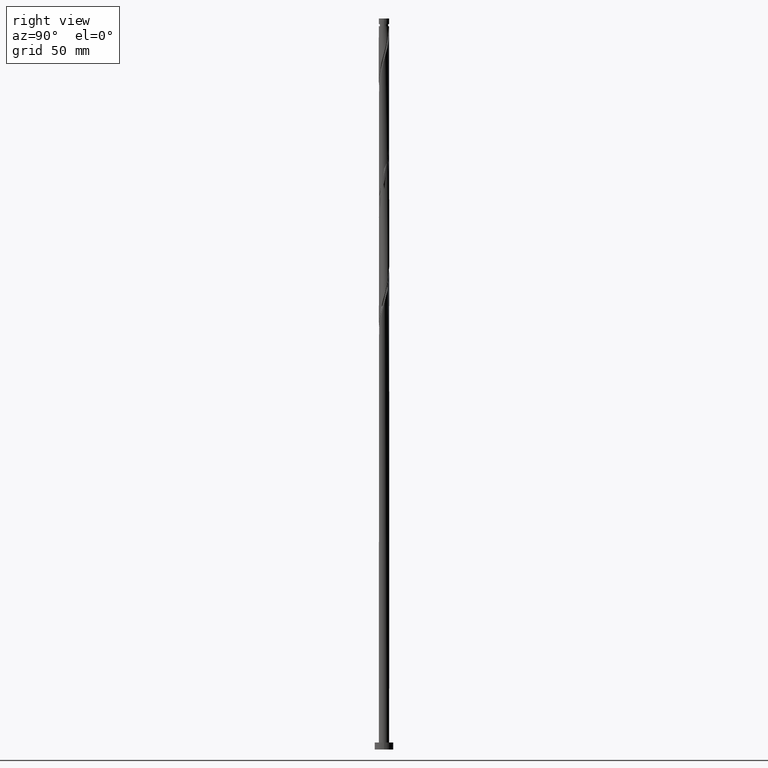
[diagram: clean part render]
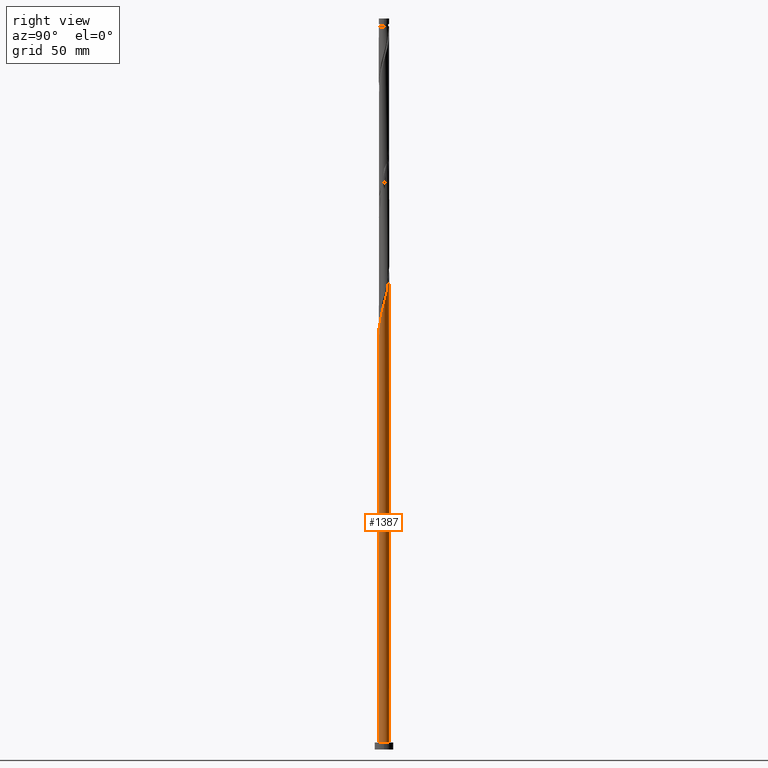
[diagram: same view with one face highlighted and labeled with its STEP entity id]
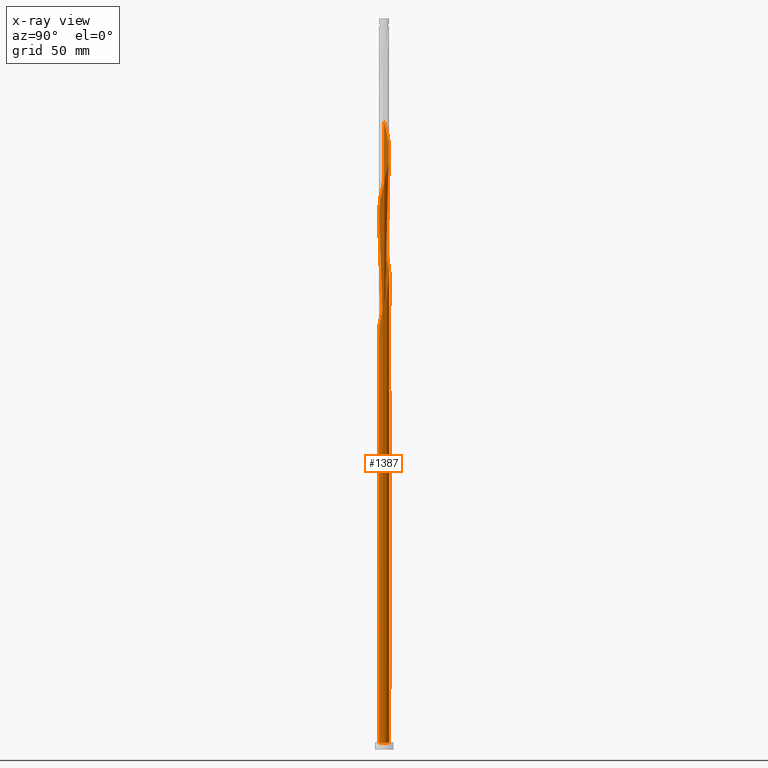
[diagram: x-ray of the same camera — body ghosted, the highlighted face saturated]
A machine part, right view. The second image highlights one B-rep face of the part: STEP entity #1387.
The next image is the same camera in x-ray: the body ghosted, the highlighted face saturated — about 0% of this face is hidden behind the body in this view.
In plain terms, the highlighted cylindrical surface (bore or boss wall) has radius 2.25 mm, axis along (-0, -0, -1).
Its self-contained STEP definition (entity closure, byte-faithful):
#2 = CARTESIAN_POINT ( 'NONE',  ( 2.205000000000002736, 0.4477443466979809106, 193.5679019602913797 ) ) ;
#25 = CARTESIAN_POINT ( 'NONE',  ( -1.639118940635362121, 1.562068662012232378, 162.6304019602913797 ) ) ;
#34 = CARTESIAN_POINT ( 'NONE',  ( -2.250000000000003109, -1.436605701446846111E-15, 165.6433848823853339 ) ) ;
#36 = CARTESIAN_POINT ( 'NONE',  ( 1.945615784186171648, 1.158166061804576152, 248.8804019602914366 ) ) ;
#38 = EDGE_CURVE ( 'NONE', #372, #1735, #339, .T. ) ;
#45 = CARTESIAN_POINT ( 'NONE',  ( -2.250000000000002665, -1.436605701446846111E-15, 165.6433848823853623 ) ) ;
#47 = CARTESIAN_POINT ( 'NONE',  ( 0.4477443466979810216, -2.205000000000002736, 232.9429019602913797 ) ) ;
#52 = CARTESIAN_POINT ( 'NONE',  ( -1.887642616875908841, 1.250429829036466378, 160.7554019602914082 ) ) ;
#55 = CARTESIAN_POINT ( 'NONE',  ( -0.1993005142182356915, 2.255448671866119525, 258.2554019602914082 ) ) ;
#66 = CARTESIAN_POINT ( 'NONE',  ( 1.444774384835915360, 1.724855639444070832, 251.6929019602914082 ) ) ;
#72 = CARTESIAN_POINT ( 'NONE',  ( -2.249348536561817546, 0.05414019825619637710, 165.4429019602914082 ) ) ;
#75 = CARTESIAN_POINT ( 'NONE',  ( 2.050083556160028575, 0.9271771204911509745, 247.9429019602913513 ) ) ;
#90 = CARTESIAN_POINT ( 'NONE',  ( -1.724855639444071498, 1.444774384835915360, 264.8179019602913513 ) ) ;
#108 = CARTESIAN_POINT ( 'NONE',  ( -2.003102452848100068, 1.024734386752946813, 266.6929019602914650 ) ) ;
#110 = DIRECTION ( 'NONE',  ( 0.000000000000000000, -0.000000000000000000, -1.000000000000000000 ) ) ;
#114 = ORIENTED_EDGE ( 'NONE', *, *, #1198, .F. ) ;
#119 = LINE ( 'NONE', #668, #178 ) ;
#146 = CARTESIAN_POINT ( 'NONE',  ( 1.360117361908405043, -1.792367362410768328, 184.1929019602913513 ) ) ;
#157 = CARTESIAN_POINT ( 'NONE',  ( -2.050083556160028575, -0.9271771204911511965, 169.1929019602913797 ) ) ;
#169 = CARTESIAN_POINT ( 'NONE',  ( 1.945615784186171648, 1.158166061804576152, 196.3804019602914366 ) ) ;
#176 = CARTESIAN_POINT ( 'NONE',  ( -1.158166061804576374, 1.945615784186171426, 157.0054019602914082 ) ) ;
#178 = VECTOR ( 'NONE', #555, 1000.000000000000000 ) ;
#179 = CARTESIAN_POINT ( 'NONE',  ( -2.003102452848100068, 1.024734386752946813, 214.1929019602913513 ) ) ;
#189 = CARTESIAN_POINT ( 'NONE',  ( -2.118562288820291517, 0.7990389444694281362, 215.1304019602914650 ) ) ;
#190 = ORIENTED_EDGE ( 'NONE', *, *, #1670, .F. ) ;
#197 = CARTESIAN_POINT ( 'NONE',  ( -2.180905345038905541, 0.5533099276000283950, 216.0679019602913797 ) ) ;
#205 = CARTESIAN_POINT ( 'NONE',  ( 2.180905345038905097, -0.5533099276000287281, 242.3179019602914366 ) ) ;
#206 = AXIS2_PLACEMENT_3D ( 'NONE', #249, #1205, #798 ) ;
#217 = CARTESIAN_POINT ( 'NONE',  ( -0.6961881791777265738, 2.154551328133886834, 207.6304019602914082 ) ) ;
#233 = CARTESIAN_POINT ( 'NONE',  ( -1.360117361908405043, 1.792367362410768328, 262.9429019602913513 ) ) ;
#234 = EDGE_CURVE ( 'NONE', #1105, #1019, #1575, .T. ) ;
#249 = CARTESIAN_POINT ( 'NONE',  ( 0.000000000000000000, 0.000000000000000000, 3.000000000000000000 ) ) ;
#257 = CARTESIAN_POINT ( 'NONE',  ( -2.250000000000002220, 0.02707401862438028189, 270.5430221941601872 ) ) ;
#262 = CIRCLE ( 'NONE', #206, 2.250000000000000000 ) ;
#278 = CARTESIAN_POINT ( 'NONE',  ( -0.4477443466979808551, 2.205000000000002736, 154.1929019602914366 ) ) ;
#280 = CARTESIAN_POINT ( 'NONE',  ( 2.118562288820291517, -0.7990389444694282473, 188.8804019602914934 ) ) ;
#287 = CARTESIAN_POINT ( 'NONE',  ( -2.249999999999999112, 1.992590765123691183E-15, 168.9924190381975109 ) ) ;
#299 = CARTESIAN_POINT ( 'NONE',  ( -1.444774384835912473, 1.724855639444069055, 161.6929019602914366 ) ) ;
#319 =( BOUNDED_CURVE ( )  B_SPLINE_CURVE ( 2, ( #1315, #736, #892, #176, #865, #1695, #1016, #52, #1417, #1443, #444, #1298, #72, #608, #34 ),
 .UNSPECIFIED., .F., .T. ) 
 B_SPLINE_CURVE_WITH_KNOTS ( ( 3, 2, 2, 2, 2, 2, 2, 3 ),
 ( 0.000000000000000000, 0.008928571428571396851, 0.01785714285714290472, 0.02678571428571430157, 0.03571428571428569843, 0.04464285714285709528, 0.05357142857142860315, 0.05453034012992205581 ),
 .UNSPECIFIED. ) 
 CURVE ( )  GEOMETRIC_REPRESENTATION_ITEM ( )  RATIONAL_B_SPLINE_CURVE ( ( 0.9090909090909629064, 0.9033747362666375569, 0.9090909090909629064, 0.9033747362666375569, 0.9090909090909629064, 0.9033747362666375569, 0.9090909090909629064, 0.9033747362666375569, 0.9090909090909629064, 0.9033747362666375569, 0.9090909090909629064, 0.9033747362666375569, 0.9090909090909629064, 0.9084770030215046921, 0.9079949616362330556 ) ) 
 REPRESENTATION_ITEM ( '' )  );
#323 = CARTESIAN_POINT ( 'NONE',  ( 0.7990389444694285803, 2.118562288820291517, 202.0054019602914366 ) ) ;
#324 = ORIENTED_EDGE ( 'NONE', *, *, #234, .F. ) ;
#332 = CARTESIAN_POINT ( 'NONE',  ( 0.5533099276000287281, 2.180905345038905097, 255.4429019602913513 ) ) ;
#339 = CIRCLE ( 'NONE', #1706, 2.250000000000000000 ) ;
#342 = CARTESIAN_POINT ( 'NONE',  ( 2.205000000000002736, 0.4477443466979809106, 246.0679019602914082 ) ) ;
#343 = ORIENTED_EDGE ( 'NONE', *, *, #639, .T. ) ;
#351 = CARTESIAN_POINT ( 'NONE',  ( -1.158166061804576374, 1.945615784186171426, 209.5054019602914934 ) ) ;
#352 = EDGE_LOOP ( 'NONE', ( #190, #324, #1136, #1331, #343, #538, #114, #1554, #1319 ) ) ;
#361 = CARTESIAN_POINT ( 'NONE',  ( 1.158166061804576152, -1.945615784186171426, 235.7554019602914082 ) ) ;
#372 = VERTEX_POINT ( 'NONE', #1472 ) ;
#407 = CARTESIAN_POINT ( 'NONE',  ( -0.7990389444694263599, 2.118562288820289297, 158.8804019602914650 ) ) ;
#417 = CARTESIAN_POINT ( 'NONE',  ( 0.4477443466979810216, -2.205000000000002736, 180.4429019602914082 ) ) ;
#436 = CARTESIAN_POINT ( 'NONE',  ( 2.243248401257517788, -0.3075809107306291534, 190.7554019602914366 ) ) ;
#444 = CARTESIAN_POINT ( 'NONE',  ( -2.180905345038905541, 0.5533099276000283950, 163.5679019602913229 ) ) ;
#446 = CARTESIAN_POINT ( 'NONE',  ( 1.724855639444070832, -1.444774384835915360, 186.0679019602914082 ) ) ;
#454 = CARTESIAN_POINT ( 'NONE',  ( -0.7990389444694282473, -2.118562288820291517, 228.2554019602914082 ) ) ;
#461 = DIRECTION ( 'NONE',  ( -0.000000000000000000, -0.000000000000000000, -1.000000000000000000 ) ) ;
#464 = CARTESIAN_POINT ( 'NONE',  ( -0.1993005142182356915, 2.255448671866119525, 205.7554019602914650 ) ) ;
#473 = CARTESIAN_POINT ( 'NONE',  ( -0.3075809107306290424, -2.243248401257518232, 230.1304019602914366 ) ) ;
#482 = CARTESIAN_POINT ( 'NONE',  ( -0.4477443466979807996, 2.205000000000002736, 206.6929019602914366 ) ) ;
#485 = VERTEX_POINT ( 'NONE', #1757 ) ;
#490 = CARTESIAN_POINT ( 'NONE',  ( -1.724855639444071498, 1.444774384835915360, 212.3179019602914082 ) ) ;
#516 = CARTESIAN_POINT ( 'NONE',  ( 2.250000000000000000, 0.000000000000000000, 3.000000000000000000 ) ) ;
#525 = CARTESIAN_POINT ( 'NONE',  ( 0.000000000000000000, 0.000000000000000000, 154.1929019602914366 ) ) ;
#538 = ORIENTED_EDGE ( 'NONE', *, *, #775, .F. ) ;
#541 = CARTESIAN_POINT ( 'NONE',  ( -2.205000000000002736, -0.4477443466979811881, 167.3179019602914082 ) ) ;
#551 = DIRECTION ( 'NONE',  ( -0.000000000000000000, -0.000000000000000000, -1.000000000000000000 ) ) ;
#555 = DIRECTION ( 'NONE',  ( -0.000000000000000000, -0.000000000000000000, -1.000000000000000000 ) ) ;
#560 = CARTESIAN_POINT ( 'NONE',  ( 0.4477443466979814657, 2.204999999999998739, 154.1929019602914366 ) ) ;
#562 = CARTESIAN_POINT ( 'NONE',  ( 2.154551328133886834, 0.6961881791777263517, 194.5054019602914366 ) ) ;
#573 = CARTESIAN_POINT ( 'NONE',  ( 1.562068662012234377, -1.639118940635365451, 185.1304019602913797 ) ) ;
#582 = CARTESIAN_POINT ( 'NONE',  ( -2.250000000000000000, 0.000000000000000000, 315.0000000000000000 ) ) ;
#592 = CARTESIAN_POINT ( 'NONE',  ( 0.5533099276000287281, 2.180905345038905097, 202.9429019602913229 ) ) ;
#600 = CARTESIAN_POINT ( 'NONE',  ( 0.7990389444694285803, 2.118562288820291517, 254.5054019602914650 ) ) ;
#608 = CARTESIAN_POINT ( 'NONE',  ( -2.250000000000002220, 0.02707401862437792961, 165.5430221941603008 ) ) ;
#612 = CARTESIAN_POINT ( 'NONE',  ( -1.360117361908405043, 1.792367362410768328, 210.4429019602913797 ) ) ;
#624 = CARTESIAN_POINT ( 'NONE',  ( -1.444774384835915360, -1.724855639444071498, 225.4429019602913797 ) ) ;
#632 = CARTESIAN_POINT ( 'NONE',  ( -1.887642616875908841, 1.250429829036466378, 213.2554019602914082 ) ) ;
#639 = EDGE_CURVE ( 'NONE', #1735, #372, #262, .T. ) ;
#641 = CARTESIAN_POINT ( 'NONE',  ( -2.180905345038905541, 0.5533099276000283950, 268.5679019602914650 ) ) ;
#648 = CARTESIAN_POINT ( 'NONE',  ( -0.9271771204911513076, 2.050083556160028575, 261.0679019602914082 ) ) ;
#655 = CARTESIAN_POINT ( 'NONE',  ( -0.4477443466979807996, 2.205000000000002736, 259.1929019602913513 ) ) ;
#665 = CARTESIAN_POINT ( 'NONE',  ( -1.158166061804576374, 1.945615784186171426, 262.0054019602914082 ) ) ;
#668 = CARTESIAN_POINT ( 'NONE',  ( -2.250000000000000000, 0.000000000000000000, 315.0000000000000000 ) ) ;
#682 = CARTESIAN_POINT ( 'NONE',  ( 1.158166061804576152, -1.945615784186171426, 183.2554019602914366 ) ) ;
#689 = CARTESIAN_POINT ( 'NONE',  ( -0.05414019825619649506, -2.249348536561817546, 178.5679019602914082 ) ) ;
#697 = CARTESIAN_POINT ( 'NONE',  ( -1.250429829036463936, 1.887642616875906176, 160.7554019602914082 ) ) ;
#710 = CARTESIAN_POINT ( 'NONE',  ( -0.3075809107306290424, -2.243248401257518232, 177.6304019602914650 ) ) ;
#721 = CARTESIAN_POINT ( 'NONE',  ( 1.792367362410768328, 1.360117361908404821, 197.3179019602913797 ) ) ;
#729 = CARTESIAN_POINT ( 'NONE',  ( 1.724855639444070832, -1.444774384835915360, 238.5679019602913513 ) ) ;
#736 = CARTESIAN_POINT ( 'NONE',  ( -0.6961881791777265738, 2.154551328133886834, 155.1304019602914650 ) ) ;
#738 = CARTESIAN_POINT ( 'NONE',  ( 1.639118940635365451, 1.562068662012234155, 250.7554019602914366 ) ) ;
#746 = EDGE_CURVE ( 'NONE', #485, #1364, #1490, .T. ) ;
#748 = CARTESIAN_POINT ( 'NONE',  ( -0.5533099276000283950, -2.180905345038905097, 229.1929019602914082 ) ) ;
#758 = CARTESIAN_POINT ( 'NONE',  ( 2.154551328133886834, 0.6961881791777263517, 247.0054019602914082 ) ) ;
#767 = CARTESIAN_POINT ( 'NONE',  ( -1.792367362410768328, -1.360117361908405043, 223.5679019602913513 ) ) ;
#775 = EDGE_CURVE ( 'NONE', #1105, #372, #1672, .T. ) ;
#784 = CARTESIAN_POINT ( 'NONE',  ( -1.562068662012235043, 1.639118940635365229, 263.8804019602915218 ) ) ;
#792 = CARTESIAN_POINT ( 'NONE',  ( -2.249348536561817546, 0.05414019825619637710, 270.4429019602913513 ) ) ;
#798 = DIRECTION ( 'NONE',  ( 1.000000000000000000, 0.000000000000000000, 0.000000000000000000 ) ) ;
#823 = CARTESIAN_POINT ( 'NONE',  ( -0.5533099276000283950, -2.180905345038905097, 176.6929019602913797 ) ) ;
#854 = CARTESIAN_POINT ( 'NONE',  ( -0.5533099276000270628, 2.180905345038901544, 157.9429019602913797 ) ) ;
#857 = CARTESIAN_POINT ( 'NONE',  ( -1.250429829036466822, -1.887642616875908619, 173.8804019602913797 ) ) ;
#865 = CARTESIAN_POINT ( 'NONE',  ( -1.360117361908405043, 1.792367362410768328, 157.9429019602914650 ) ) ;
#867 = CARTESIAN_POINT ( 'NONE',  ( -1.639118940635365451, -1.562068662012234377, 172.0054019602914082 ) ) ;
#877 = CARTESIAN_POINT ( 'NONE',  ( 1.792367362410768328, 1.360117361908404821, 249.8179019602913797 ) ) ;
#883 = CYLINDRICAL_SURFACE ( 'NONE', #1421, 2.250000000000000000 ) ;
#885 = CARTESIAN_POINT ( 'NONE',  ( -2.243248401257518232, 0.3075809107306289314, 217.0054019602914650 ) ) ;
#892 = CARTESIAN_POINT ( 'NONE',  ( -0.9271771204911513076, 2.050083556160028575, 156.0679019602913797 ) ) ;
#895 = CARTESIAN_POINT ( 'NONE',  ( 0.1993005142182359968, -2.255448671866119525, 232.0054019602914650 ) ) ;
#905 = CARTESIAN_POINT ( 'NONE',  ( 1.444774384835915360, 1.724855639444070832, 199.1929019602913797 ) ) ;
#951 = DIRECTION ( 'NONE',  ( 0.000000000000000000, 0.000000000000000000, 1.000000000000000000 ) ) ;
#965 = CARTESIAN_POINT ( 'NONE',  ( -0.05414019825619584281, 2.249348536561814438, 156.0679019602914082 ) ) ;
#967 = CARTESIAN_POINT ( 'NONE',  ( 2.003102452848099624, -1.024734386752947257, 187.9429019602914650 ) ) ;
#986 = CARTESIAN_POINT ( 'NONE',  ( 0.000000000000000000, 0.000000000000000000, 3.000000000000000000 ) ) ;
#987 = CARTESIAN_POINT ( 'NONE',  ( 2.050083556160028575, 0.9271771204911509745, 195.4429019602913797 ) ) ;
#988 = VERTEX_POINT ( 'NONE', #278 ) ;
#997 = CARTESIAN_POINT ( 'NONE',  ( 0.9271771204911509745, -2.050083556160028575, 182.3179019602914082 ) ) ;
#1007 = CARTESIAN_POINT ( 'NONE',  ( 1.562068662012234377, -1.639118940635365451, 237.6304019602914082 ) ) ;
#1016 = CARTESIAN_POINT ( 'NONE',  ( -1.724855639444071498, 1.444774384835915360, 159.8179019602914082 ) ) ;
#1018 = CARTESIAN_POINT ( 'NONE',  ( -1.562068662012235043, 1.639118940635365229, 211.3804019602914650 ) ) ;
#1019 = VERTEX_POINT ( 'NONE', #1576 ) ;
#1028 = CARTESIAN_POINT ( 'NONE',  ( -0.05414019825619649506, -2.249348536561817546, 231.0679019602913797 ) ) ;
#1036 = CARTESIAN_POINT ( 'NONE',  ( 1.024734386752947257, 2.003102452848099624, 253.5679019602913797 ) ) ;
#1046 = CARTESIAN_POINT ( 'NONE',  ( -1.945615784186171426, -1.158166061804576152, 222.6304019602914082 ) ) ;
#1067 = AXIS2_PLACEMENT_3D ( 'NONE', #525, #110, #1793 ) ;
#1093 = CARTESIAN_POINT ( 'NONE',  ( -1.444774384835915360, -1.724855639444071498, 172.9429019602914650 ) ) ;
#1102 = CARTESIAN_POINT ( 'NONE',  ( -2.250000000000003109, -1.436605701446846111E-15, 165.6433848823853339 ) ) ;
#1105 = VERTEX_POINT ( 'NONE', #45 ) ;
#1109 = CARTESIAN_POINT ( 'NONE',  ( -1.792367362410764997, 1.360117361908403710, 163.5679019602913513 ) ) ;
#1111 = CARTESIAN_POINT ( 'NONE',  ( 2.255448671866119525, 0.1993005142182358580, 192.6304019602914082 ) ) ;
#1135 = CARTESIAN_POINT ( 'NONE',  ( -0.7990389444694282473, -2.118562288820291517, 175.7554019602913797 ) ) ;
#1136 = ORIENTED_EDGE ( 'NONE', *, *, #775, .T. ) ;
#1145 = CARTESIAN_POINT ( 'NONE',  ( -2.154551328133886834, -0.6961881791777263517, 220.7554019602914366 ) ) ;
#1153 = CARTESIAN_POINT ( 'NONE',  ( 0.000000000000000000, 0.000000000000000000, 315.0000000000000000 ) ) ;
#1155 = CARTESIAN_POINT ( 'NONE',  ( 2.249348536561817546, -0.05414019825619669629, 244.1929019602913513 ) ) ;
#1161 = FACE_OUTER_BOUND ( 'NONE', #352, .T. ) ;
#1164 = CARTESIAN_POINT ( 'NONE',  ( -1.639118940635365451, -1.562068662012234377, 224.5054019602914366 ) ) ;
#1173 = CARTESIAN_POINT ( 'NONE',  ( 1.250429829036466822, 1.887642616875908397, 252.6304019602914650 ) ) ;
#1182 = CARTESIAN_POINT ( 'NONE',  ( 1.024734386752947257, 2.003102452848099624, 201.0679019602914082 ) ) ;
#1198 = EDGE_CURVE ( 'NONE', #988, #1105, #319, .T. ) ;
#1205 = DIRECTION ( 'NONE',  ( 0.000000000000000000, 0.000000000000000000, 1.000000000000000000 ) ) ;
#1221 = CARTESIAN_POINT ( 'NONE',  ( -1.887642616875908841, 1.250429829036466378, 265.7554019602914082 ) ) ;
#1222 = DIRECTION ( 'NONE',  ( 1.000000000000000000, 0.000000000000000000, 0.000000000000000000 ) ) ;
#1228 = CARTESIAN_POINT ( 'NONE',  ( -0.3075809107306280432, 2.243248401257514679, 157.0054019602914082 ) ) ;
#1236 = CARTESIAN_POINT ( 'NONE',  ( -2.250000000000002665, -0.2261335084333238599, 166.4816559613489915 ) ) ;
#1237 = VECTOR ( 'NONE', #551, 1000.000000000000000 ) ;
#1244 = CARTESIAN_POINT ( 'NONE',  ( -1.945615784186168318, 1.158166061804575264, 164.5054019602914650 ) ) ;
#1246 = CARTESIAN_POINT ( 'NONE',  ( 2.249348536561817546, -0.05414019825619669629, 191.6929019602914650 ) ) ;
#1259 = CARTESIAN_POINT ( 'NONE',  ( 0.1993005142182359968, -2.255448671866119525, 179.5054019602914366 ) ) ;
#1271 = CARTESIAN_POINT ( 'NONE',  ( -2.204999999999998739, 0.4477443466979811326, 167.3179019602913797 ) ) ;
#1282 = CARTESIAN_POINT ( 'NONE',  ( 2.243248401257517788, -0.3075809107306291534, 243.2554019602914650 ) ) ;
#1290 = CARTESIAN_POINT ( 'NONE',  ( 0.4477443466979815212, 2.204999999999998739, 154.1929019602914366 ) ) ;
#1292 = CARTESIAN_POINT ( 'NONE',  ( 1.887642616875908619, -1.250429829036466822, 239.5054019602913513 ) ) ;
#1298 = CARTESIAN_POINT ( 'NONE',  ( -2.243248401257518232, 0.3075809107306289314, 164.5054019602914082 ) ) ;
#1301 = CARTESIAN_POINT ( 'NONE',  ( 0.05414019825619682119, 2.249348536561817546, 257.3179019602913513 ) ) ;
#1310 = CARTESIAN_POINT ( 'NONE',  ( 0.6961881791777263517, -2.154551328133886834, 233.8804019602914082 ) ) ;
#1315 = CARTESIAN_POINT ( 'NONE',  ( -0.4477443466979809106, 2.205000000000002736, 154.1929019602914650 ) ) ;
#1318 = CARTESIAN_POINT ( 'NONE',  ( -1.024734386752947257, -2.003102452848099624, 227.3179019602914366 ) ) ;
#1319 = ORIENTED_EDGE ( 'NONE', *, *, #746, .F. ) ;
#1331 = ORIENTED_EDGE ( 'NONE', *, *, #38, .T. ) ;
#1364 = VERTEX_POINT ( 'NONE', #1290 ) ;
#1379 = CARTESIAN_POINT ( 'NONE',  ( -2.154551328133886834, -0.6961881791777263517, 168.2554019602914366 ) ) ;
#1387 = ADVANCED_FACE ( 'NONE', ( #1161 ), #883, .T. ) ;
#1388 = CARTESIAN_POINT ( 'NONE',  ( 2.180905345038905097, -0.5533099276000287281, 189.8179019602913513 ) ) ;
#1397 = CARTESIAN_POINT ( 'NONE',  ( -1.024734386752944593, 2.003102452848097847, 159.8179019602914082 ) ) ;
#1410 = CARTESIAN_POINT ( 'NONE',  ( -1.024734386752947257, -2.003102452848099624, 174.8179019602914082 ) ) ;
#1417 = CARTESIAN_POINT ( 'NONE',  ( -2.003102452848100068, 1.024734386752946813, 161.6929019602913797 ) ) ;
#1420 = CARTESIAN_POINT ( 'NONE',  ( 0.9271771204911509745, -2.050083556160028575, 234.8179019602913797 ) ) ;
#1421 = AXIS2_PLACEMENT_3D ( 'NONE', #1153, #461, #1723 ) ;
#1428 = CARTESIAN_POINT ( 'NONE',  ( -1.250429829036466822, -1.887642616875908619, 226.3804019602914082 ) ) ;
#1436 = CARTESIAN_POINT ( 'NONE',  ( 0.3075809107306292645, 2.243248401257517788, 256.3804019602914650 ) ) ;
#1443 = CARTESIAN_POINT ( 'NONE',  ( -2.118562288820291517, 0.7990389444694281362, 162.6304019602914082 ) ) ;
#1448 = CARTESIAN_POINT ( 'NONE',  ( 2.118562288820291517, -0.7990389444694282473, 241.3804019602914934 ) ) ;
#1456 = CARTESIAN_POINT ( 'NONE',  ( -2.205000000000002736, -0.4477443466979811881, 219.8179019602914366 ) ) ;
#1472 = CARTESIAN_POINT ( 'NONE',  ( -2.250000000000000000, 0.000000000000000000, 3.000000000000000000 ) ) ;
#1490 =( BOUNDED_CURVE ( )  B_SPLINE_CURVE ( 2, ( #287, #1682, #1271, #1508, #1545, #1244, #1109, #25, #299, #697, #1397, #407, #854, #1228, #965, #1807, #560 ),
 .UNSPECIFIED., .F., .T. ) 
 B_SPLINE_CURVE_WITH_KNOTS ( ( 3, 2, 2, 2, 2, 2, 2, 2, 3 ),
 ( 0.9295303401299220836, 0.9375000000000000000, 0.9464285714285713969, 0.9553571428571429047, 0.9642857142857143016, 0.9732142857142856984, 0.9821428571428570953, 0.9910714285714286031, 1.000000000000000000 ),
 .UNSPECIFIED. ) 
 CURVE ( )  GEOMETRIC_REPRESENTATION_ITEM ( )  RATIONAL_B_SPLINE_CURVE ( ( 0.9079949616362266163, 0.9039886423360895540, 0.9090909090909564672, 0.9033747362666312286, 0.9090909090909564672, 0.9033747362666312286, 0.9090909090909564672, 0.9033747362666312286, 0.9090909090909564672, 0.9033747362666312286, 0.9090909090909564672, 0.9033747362666312286, 0.9090909090909564672, 0.9033747362666312286, 0.9090909090909564672, 0.9033747362666312286, 0.9090909090909564672 ) ) 
 REPRESENTATION_ITEM ( '' )  );
#1508 = CARTESIAN_POINT ( 'NONE',  ( -2.154551328133884169, 0.6961881791777260187, 166.3804019602914650 ) ) ;
#1526 = CARTESIAN_POINT ( 'NONE',  ( 0.6961881791777263517, -2.154551328133886834, 181.3804019602914082 ) ) ;
#1545 = CARTESIAN_POINT ( 'NONE',  ( -2.050083556160025466, 0.9271771204911501973, 165.4429019602913797 ) ) ;
#1547 = CARTESIAN_POINT ( 'NONE',  ( -1.792367362410768328, -1.360117361908405043, 171.0679019602913797 ) ) ;
#1554 = ORIENTED_EDGE ( 'NONE', *, *, #1657, .T. ) ;
#1568 = CARTESIAN_POINT ( 'NONE',  ( -2.249348536561817546, 0.05414019825619637710, 217.9429019602913797 ) ) ;
#1575 =( BOUNDED_CURVE ( )  B_SPLINE_CURVE ( 2, ( #1102, #1236, #541, #1379, #157, #1665, #1547, #867, #1093, #857, #1410, #1135, #823, #710, #689, #1259, #417, #1526, #997, #682, #146, #573, #446, #1686, #967, #280, #1388, #436, #1246, #1111, #2, #562, #987, #169, #721, #1697, #905, #1734, #1182, #323, #592, #1726, #1717, #464, #482, #217, #1604, #351, #612, #1018, #490, #632, #179, #189, #197, #885, #1568, #1707, #1456, #1145, #1743, #1046, #767, #1164, #624, #1428, #1318, #454, #748, #473, #1028, #895, #47, #1310, #1420, #361, #1587, #1007, #729, #1292, #1595, #1448, #205, #1282, #1155, #1578, #342, #758, #75, #36, #877, #738, #66, #1173, #1036, #600, #332, #1436, #1301, #55, #655, #1611, #648, #665, #233, #784, #90, #1221, #108, #1636, #641, #1751, #792, #257, #1765 ),
 .UNSPECIFIED., .F., .T. ) 
 B_SPLINE_CURVE_WITH_KNOTS ( ( 3, 2, 2, 2, 2, 2, 2, 2, 2, 2, 2, 2, 2, 2, 2, 2, 2, 2, 2, 2, 2, 2, 2, 2, 2, 2, 2, 2, 2, 2, 2, 2, 2, 2, 2, 2, 2, 2, 2, 2, 2, 2, 2, 2, 2, 2, 2, 2, 2, 2, 2, 2, 2, 2, 2, 2, 2, 3 ),
 ( 0.05453034012992205581, 0.06250000000000000000, 0.07142857142857139685, 0.08035714285714290472, 0.08928571428571430157, 0.09821428571428569843, 0.1071428571428570953, 0.1160714285714286031, 0.1250000000000000000, 0.1339285714285713969, 0.1428571428571429047, 0.1517857142857143016, 0.1607142857142856984, 0.1696428571428570953, 0.1785714285714286031, 0.1875000000000000000, 0.1964285714285713969, 0.2053571428571429047, 0.2142857142857143016, 0.2232142857142856984, 0.2321428571428570953, 0.2410714285714286031, 0.2500000000000000000, 0.2589285714285713969, 0.2678571428571429047, 0.2767857142857143016, 0.2857142857142856984, 0.2946428571428570953, 0.3035714285714286031, 0.3125000000000000000, 0.3214285714285713969, 0.3303571428571429047, 0.3392857142857143016, 0.3482142857142856984, 0.3571428571428570953, 0.3660714285714286031, 0.3750000000000000000, 0.3839285714285713969, 0.3928571428571429047, 0.4017857142857143016, 0.4107142857142856984, 0.4196428571428570953, 0.4285714285714286031, 0.4375000000000000000, 0.4464285714285713969, 0.4553571428571429047, 0.4642857142857143016, 0.4732142857142856984, 0.4821428571428570953, 0.4910714285714286031, 0.5000000000000000000, 0.5089285714285713969, 0.5178571428571427937, 0.5267857142857143016, 0.5357142857142856984, 0.5446428571428572063, 0.5535714285714286031, 0.5545303401299219725 ),
 .UNSPECIFIED. ) 
 CURVE ( )  GEOMETRIC_REPRESENTATION_ITEM ( )  RATIONAL_B_SPLINE_CURVE ( ( 0.9079949616362330556, 0.9039886423360958823, 0.9090909090909629064, 0.9033747362666375569, 0.9090909090909629064, 0.9033747362666375569, 0.9090909090909629064, 0.9033747362666375569, 0.9090909090909629064, 0.9033747362666375569, 0.9090909090909629064, 0.9033747362666375569, 0.9090909090909629064, 0.9033747362666375569, 0.9090909090909629064, 0.9033747362666375569, 0.9090909090909629064, 0.9033747362666375569, 0.9090909090909629064, 0.9033747362666375569, 0.9090909090909629064, 0.9033747362666375569, 0.9090909090909629064, 0.9033747362666375569, 0.9090909090909629064, 0.9033747362666375569, 0.9090909090909629064, 0.9033747362666375569, 0.9090909090909629064, 0.9033747362666375569, 0.9090909090909629064, 0.9033747362666375569, 0.9090909090909629064, 0.9033747362666375569, 0.9090909090909629064, 0.9033747362666375569, 0.9090909090909629064, 0.9033747362666375569, 0.9090909090909629064, 0.9033747362666375569, 0.9090909090909629064, 0.9033747362666375569, 0.9090909090909629064, 0.9033747362666375569, 0.9090909090909629064, 0.9033747362666375569, 0.9090909090909629064, 0.9033747362666375569, 0.9090909090909629064, 0.9033747362666375569, 0.9090909090909629064, 0.9033747362666375569, 0.9090909090909629064, 0.9033747362666375569, 0.9090909090909629064, 0.9033747362666375569, 0.9090909090909629064, 0.9033747362666375569, 0.9090909090909629064, 0.9033747362666375569, 0.9090909090909629064, 0.9033747362666375569, 0.9090909090909629064, 0.9033747362666375569, 0.9090909090909629064, 0.9033747362666375569, 0.9090909090909629064, 0.9033747362666375569, 0.9090909090909629064, 0.9033747362666375569, 0.9090909090909629064, 0.9033747362666375569, 0.9090909090909629064, 0.9033747362666375569, 0.9090909090909629064, 0.9033747362666375569, 0.9090909090909629064, 0.9033747362666375569, 0.9090909090909629064, 0.9033747362666375569, 0.9090909090909629064, 0.9033747362666375569, 0.9090909090909629064, 0.9033747362666375569, 0.9090909090909629064, 0.9033747362666375569, 0.9090909090909629064, 0.9033747362666375569, 0.9090909090909629064, 0.9033747362666375569, 0.9090909090909629064, 0.9033747362666375569, 0.9090909090909629064, 0.9033747362666375569, 0.9090909090909629064, 0.9033747362666375569, 0.9090909090909629064, 0.9033747362666375569, 0.9090909090909629064, 0.9033747362666375569, 0.9090909090909629064, 0.9033747362666375569, 0.9090909090909629064, 0.9033747362666375569, 0.9090909090909629064, 0.9033747362666375569, 0.9090909090909629064, 0.9033747362666375569, 0.9090909090909629064, 0.9033747362666375569, 0.9090909090909629064, 0.9033747362666375569, 0.9090909090909629064, 0.9084770030215046921, 0.9079949616362330556 ) ) 
 REPRESENTATION_ITEM ( '' )  );
#1576 = CARTESIAN_POINT ( 'NONE',  ( -2.250000000000001776, -1.100775797212518259E-15, 270.6433848823853054 ) ) ;
#1578 = CARTESIAN_POINT ( 'NONE',  ( 2.255448671866119525, 0.1993005142182358580, 245.1304019602914082 ) ) ;
#1587 = CARTESIAN_POINT ( 'NONE',  ( 1.360117361908405043, -1.792367362410768328, 236.6929019602914082 ) ) ;
#1595 = CARTESIAN_POINT ( 'NONE',  ( 2.003102452848099624, -1.024734386752947257, 240.4429019602914082 ) ) ;
#1604 = CARTESIAN_POINT ( 'NONE',  ( -0.9271771204911513076, 2.050083556160028575, 208.5679019602914082 ) ) ;
#1611 = CARTESIAN_POINT ( 'NONE',  ( -0.6961881791777265738, 2.154551328133886834, 260.1304019602914082 ) ) ;
#1636 = CARTESIAN_POINT ( 'NONE',  ( -2.118562288820291517, 0.7990389444694281362, 267.6304019602914082 ) ) ;
#1657 = EDGE_CURVE ( 'NONE', #988, #1364, #1747, .T. ) ;
#1665 = CARTESIAN_POINT ( 'NONE',  ( -1.945615784186171426, -1.158166061804576152, 170.1304019602914082 ) ) ;
#1670 = EDGE_CURVE ( 'NONE', #1019, #485, #119, .T. ) ;
#1672 = LINE ( 'NONE', #582, #1237 ) ;
#1682 = CARTESIAN_POINT ( 'NONE',  ( -2.249999999999999112, 0.2261335084333248591, 168.1541479592339385 ) ) ;
#1686 = CARTESIAN_POINT ( 'NONE',  ( 1.887642616875908619, -1.250429829036466822, 187.0054019602914366 ) ) ;
#1695 = CARTESIAN_POINT ( 'NONE',  ( -1.562068662012235043, 1.639118940635365229, 158.8804019602914082 ) ) ;
#1697 = CARTESIAN_POINT ( 'NONE',  ( 1.639118940635365451, 1.562068662012234155, 198.2554019602914934 ) ) ;
#1706 = AXIS2_PLACEMENT_3D ( 'NONE', #986, #951, #1222 ) ;
#1707 = CARTESIAN_POINT ( 'NONE',  ( -2.255448671866119081, -0.1993005142182361356, 218.8804019602914650 ) ) ;
#1717 = CARTESIAN_POINT ( 'NONE',  ( 0.05414019825619682119, 2.249348536561817546, 204.8179019602913797 ) ) ;
#1723 = DIRECTION ( 'NONE',  ( -1.000000000000000000, 0.000000000000000000, 0.000000000000000000 ) ) ;
#1726 = CARTESIAN_POINT ( 'NONE',  ( 0.3075809107306292645, 2.243248401257517788, 203.8804019602914082 ) ) ;
#1734 = CARTESIAN_POINT ( 'NONE',  ( 1.250429829036466822, 1.887642616875908397, 200.1304019602914650 ) ) ;
#1735 = VERTEX_POINT ( 'NONE', #516 ) ;
#1743 = CARTESIAN_POINT ( 'NONE',  ( -2.050083556160028575, -0.9271771204911511965, 221.6929019602914650 ) ) ;
#1747 = CIRCLE ( 'NONE', #1067, 2.250000000000000000 ) ;
#1751 = CARTESIAN_POINT ( 'NONE',  ( -2.243248401257518232, 0.3075809107306289314, 269.5054019602914650 ) ) ;
#1757 = CARTESIAN_POINT ( 'NONE',  ( -2.249999999999999112, 1.992590765123691183E-15, 168.9924190381975109 ) ) ;
#1765 = CARTESIAN_POINT ( 'NONE',  ( -2.250000000000001776, -1.100775797212518259E-15, 270.6433848823853054 ) ) ;
#1793 = DIRECTION ( 'NONE',  ( -1.000000000000000000, 0.000000000000000000, 0.000000000000000000 ) ) ;
#1807 = CARTESIAN_POINT ( 'NONE',  ( 0.1993005142182362188, 2.255448671866115085, 155.1304019602914366 ) ) ;